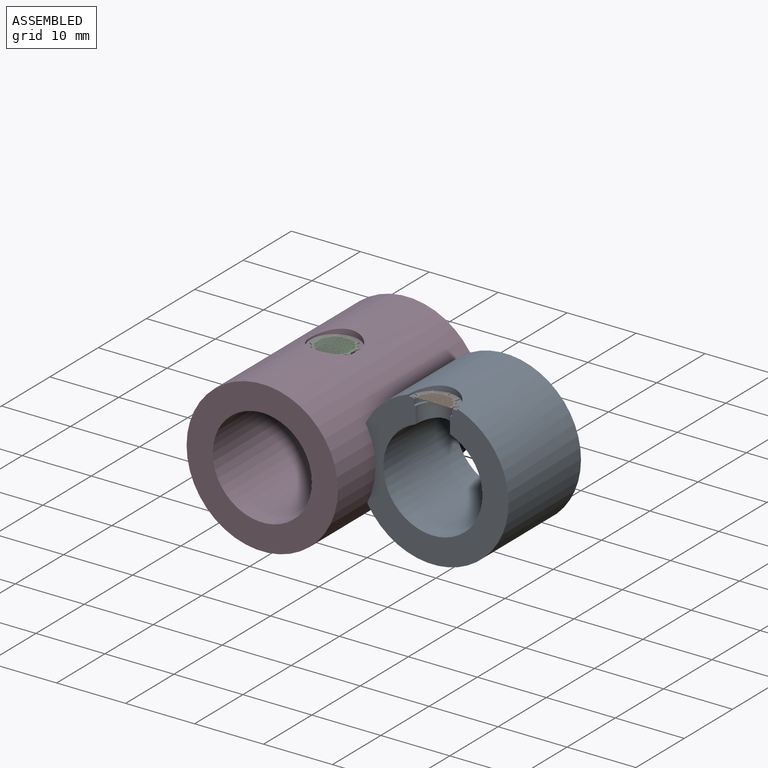
[diagram: assembled view]
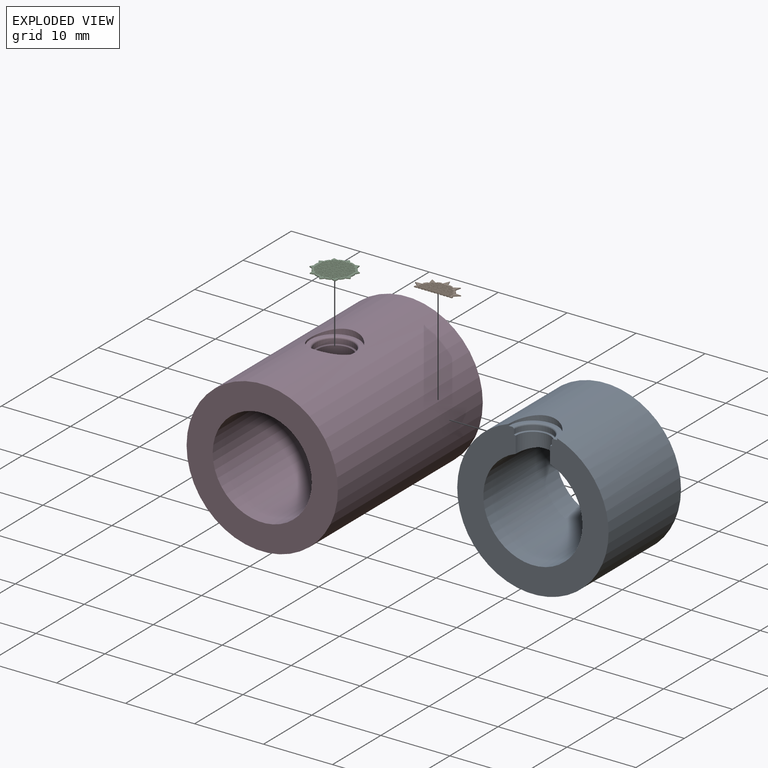
[diagram: exploded view]
GUIDED TOUR — MATED ASSEMBLY (Onshape document 57b4995ae4b0a399ffafbe50, AutoMate assembly 57b4995ae4b0a399ffafbe50_5d55dc523e747e928c4427d9_177f7091939f9d372d16fec1_default)

This assembly has 4 components, labeled P0..P3 below (a component is one placed occurrence of a part; the same part can appear more than once), held together by 2 mates. A mate is a constraint between two components; its type names the relative motion it leaves free:
  FASTENED — locks the two components together rigidly (no relative motion).
Axis/direction vectors are unit vectors and 'through' points are millimeter coordinates, both in the assembly's world frame.

MATES
  1. FASTENED "Fastened 1": P2 <-> P3, direction (0.000, 0.000, -1.000) through (-10.20, -12.13, -7.81) mm
  2. FASTENED "Fastened 4": P1 <-> P0, direction (0.000, 0.000, -1.000) through (9.09, -19.35, -7.33) mm

ASSEMBLY ORDER
  1. P3 — the base component [order verified]
  2. P0 [order verified]
  3. P2 [order verified]
  4. P1 [order verified]
Order-tag legend:
  [order verified] — this step's position reverses a verified removal order: the component was checked to insert without passing through the ones already placed.

Of the 4 components, 2 carry the full construction recipe — the FeatureScript program that regenerates the part's solid from scratch; the rest are supplied as boundary geometry only.
Each toured component is shown spotlighted twice — in the assembled view, then in the exploded view, where a leader line traces a displaced component back to its assembled socket (saturated green if recipe-attached, orange if geometry-only; every other component desaturated gray) — followed by its recipe or geometry summary and the mates that hold it.
NOTE — this tour is split across 2 documents so each fits a 32k-token context. This is document 1: the component sections continue in the remaining 1 document, each repeating the header above.
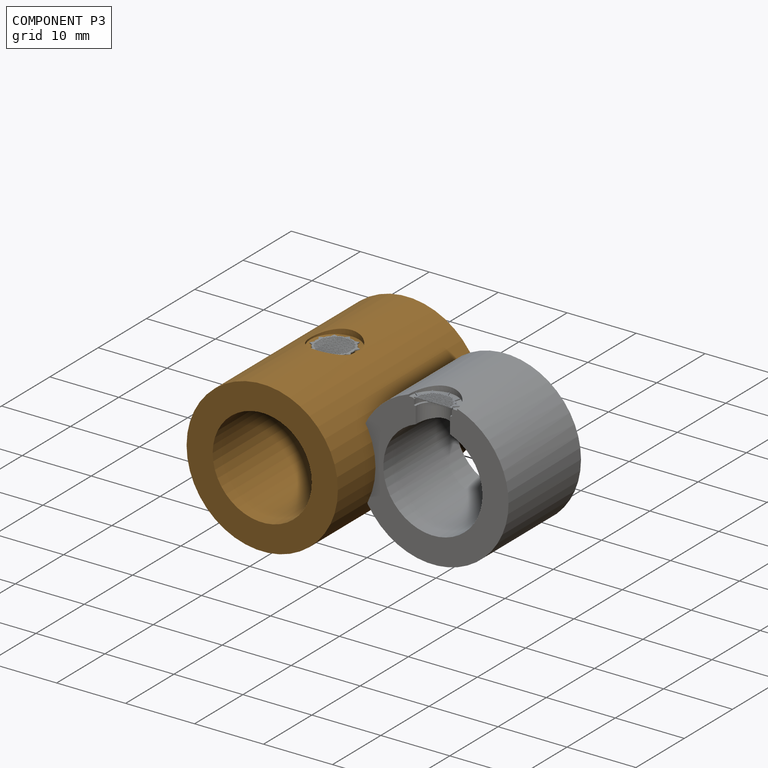
[diagram: component P3 — assembled]
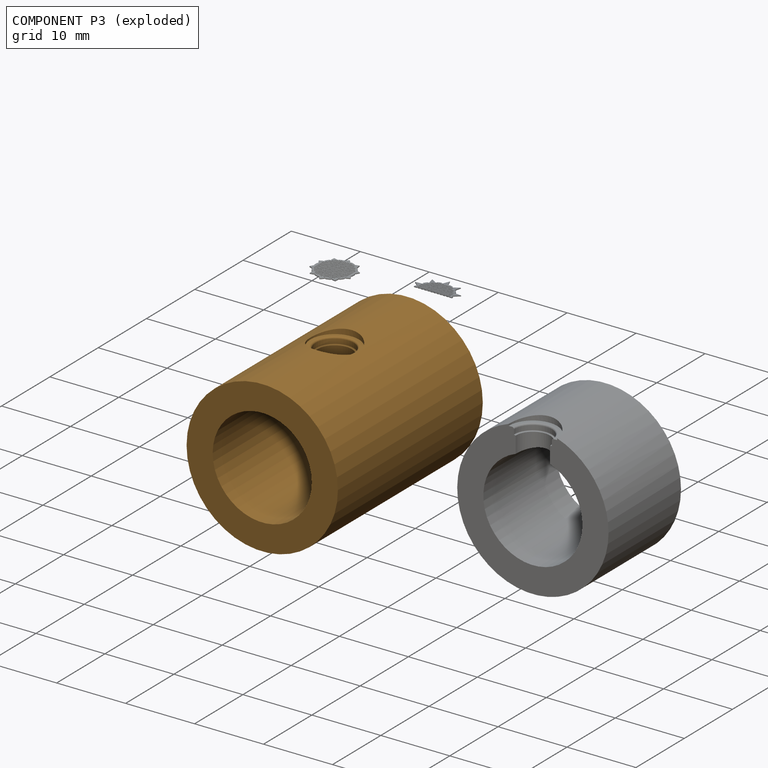
[diagram: component P3 — exploded]
COMPONENT P3 — geometry summary (no construction recipe available for this part):
  bounding box: 30.0 x 21.9 x 21.9 mm
  B-rep topology: 1 solid, 11 faces, 38 edges
  volume: 6386 mm^3 (44% of its bounding box)
  symmetry: 2-fold rotationally symmetric about the z axis; mirror-symmetric across its x mid-plane, y mid-plane
Held by: FASTENED mate "Fastened 1" to P2.
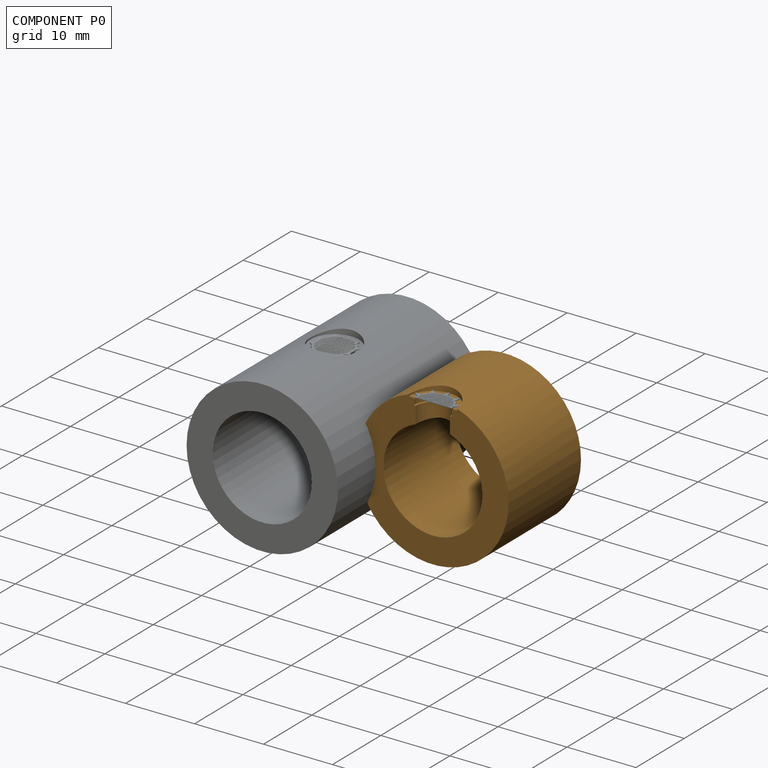
[diagram: component P0 — assembled]
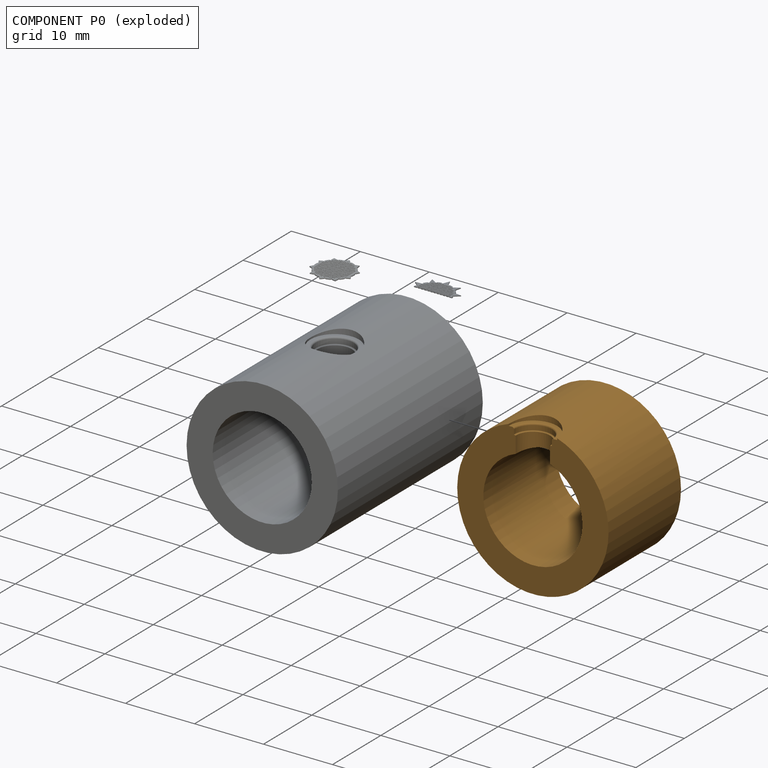
[diagram: component P0 — exploded]
COMPONENT P0 — geometry summary (no construction recipe available for this part):
  bounding box: 21.9 x 21.9 x 15.0 mm
  B-rep topology: 1 solid, 11 faces, 60 edges
  volume: 3193 mm^3 (44% of its bounding box)
  symmetry: mirror-symmetric across its x mid-plane
Held by: FASTENED mate "Fastened 4" to P1.
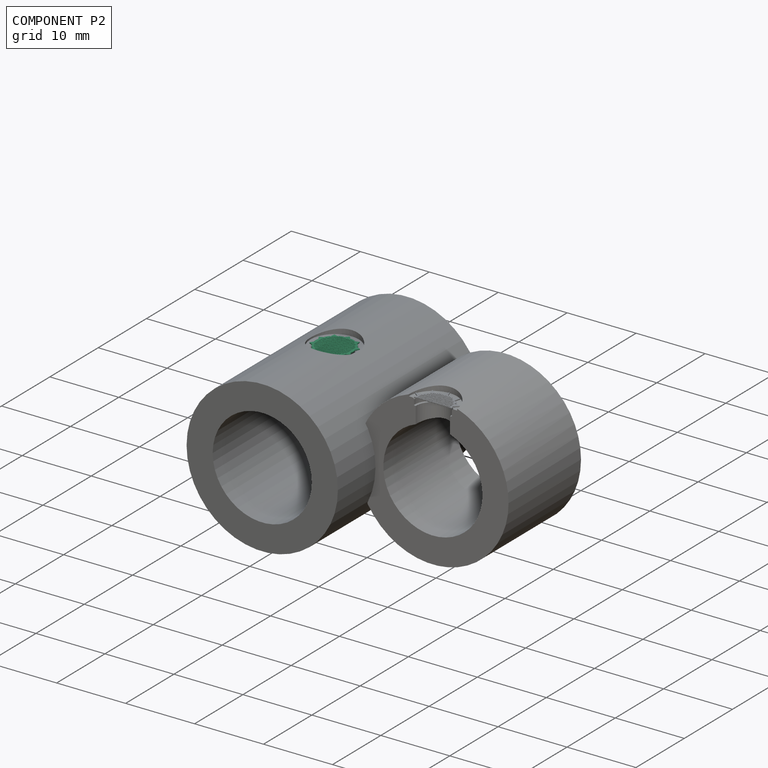
[diagram: component P2 — assembled]
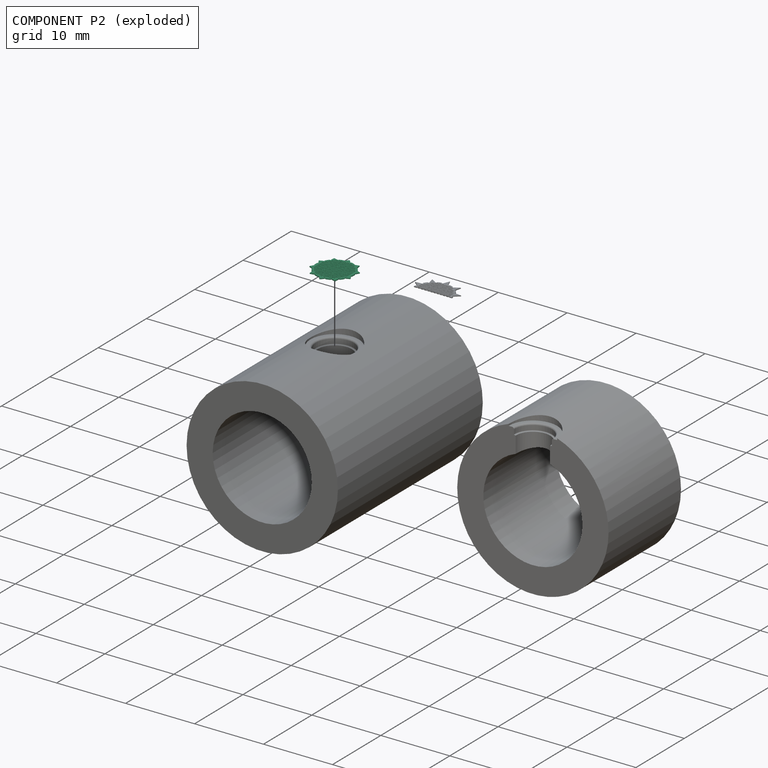
[diagram: component P2 — exploded]
COMPONENT P2 — recipe-attached (CADFS 00219270, mesh-verified: the recipe's output STEP matches this component's geometry to below the mesh-comparison resolution (tessellation chordal tolerance ~0.013 mm)).
Held by: FASTENED mate "Fastened 1" to P3.
Construction recipe (FeatureScript — the CAD program that rebuilds this solid; sketch coordinates are in the units given by the * unit suffixes, e.g. mm):

FeatureScript 1511;
import(path : "onshape/std/geometry.fs", version : "1511.0");
import(path : "onshape/std/common.fs", version : "1511.0");
const mm = millimeter;
const VERTEX = EntityType.VERTEX;
const EDGE = EntityType.EDGE;
const FACE = EntityType.FACE;
const BODY = EntityType.BODY;
function v(x, y){return vector(x, y);}
function OD(order){return orderDisambiguation(order);}
function OSD(set){return originalSetDisambiguation(set);}
function TD(topology){return topologyDisambiguation(topology);}
function TDD(query){return trueDependencyDisambiguation(query);}
function sQuery(a, b, c) {return sketchEntityQuery(a, b, c);}

annotation { "Feature Type Name" : "Feature", "Feature Type Description" : "" }
export const myFeature = defineFeature(function(context is Context, id is Id, definition is map)
    precondition{}
    {
        {
            var Q0;
            Q0=qCreatedBy(makeId("Top.planeOp"),FACE);
            var sketch = newSketch(context, id + "F0", { "sketchPlane" : qUnion([Q0])});
            skCircle(sketch, "E0", {"center": v(0, 0) * mm, "radius": 2.5 * mm});
            skArc(sketch, "E1", {"start": v(0.37, 2.72) * mm, "mid": v(0, 2.75) * mm, "end": v(-0.37, 2.72) * mm});
            skPoint(sketch, "E2", {"position": v(0, 2.75) * mm});
            skLineSegment(sketch, "E3", {"start": v(-3.94, 3.13) * mm, "end": v(3.7, 3.13) * mm, "construction": true});
            skLineSegment(sketch, "E4", {"start": v(0, 3.13) * mm, "end": v(-0.37, 2.72) * mm});
            skLineSegment(sketch, "E5", {"start": v(0, 3.13) * mm, "end": v(0.37, 2.72) * mm});
            skLineSegment(sketch, "E6.1.0", {"start": v(-1.84, 2.53) * mm, "end": v(-1.9, 1.99) * mm});
            skLineSegment(sketch, "E6.1.1", {"start": v(-1.84, 2.53) * mm, "end": v(-1.3, 2.42) * mm});
            skLineSegment(sketch, "E6.2.0", {"start": v(-2.98, 0.97) * mm, "end": v(-2.7, 0.49) * mm});
            skLineSegment(sketch, "E6.2.1", {"start": v(-2.98, 0.97) * mm, "end": v(-2.48, 1.2) * mm});
            skLineSegment(sketch, "E6.3.0", {"start": v(-2.98, -0.97) * mm, "end": v(-2.48, -1.2) * mm});
            skLineSegment(sketch, "E6.3.1", {"start": v(-2.98, -0.97) * mm, "end": v(-2.7, -0.49) * mm});
            skLineSegment(sketch, "E6.4.0", {"start": v(-1.84, -2.53) * mm, "end": v(-1.3, -2.42) * mm});
            skLineSegment(sketch, "E6.4.1", {"start": v(-1.84, -2.53) * mm, "end": v(-1.9, -1.99) * mm});
            skLineSegment(sketch, "E6.5.0", {"start": v(0, -3.13) * mm, "end": v(0.37, -2.72) * mm});
            skLineSegment(sketch, "E6.5.1", {"start": v(0, -3.13) * mm, "end": v(-0.37, -2.72) * mm});
            skLineSegment(sketch, "E6.6.0", {"start": v(1.84, -2.53) * mm, "end": v(1.9, -1.99) * mm});
            skLineSegment(sketch, "E6.6.1", {"start": v(1.84, -2.53) * mm, "end": v(1.3, -2.42) * mm});
            skLineSegment(sketch, "E6.7.0", {"start": v(2.98, -0.97) * mm, "end": v(2.7, -0.49) * mm});
            skLineSegment(sketch, "E6.7.1", {"start": v(2.98, -0.97) * mm, "end": v(2.48, -1.2) * mm});
            skLineSegment(sketch, "E6.8.0", {"start": v(2.98, 0.97) * mm, "end": v(2.48, 1.2) * mm});
            skLineSegment(sketch, "E6.8.1", {"start": v(2.98, 0.97) * mm, "end": v(2.7, 0.49) * mm});
            skLineSegment(sketch, "E6.9.0", {"start": v(1.84, 2.53) * mm, "end": v(1.3, 2.42) * mm});
            skLineSegment(sketch, "E6.9.1", {"start": v(1.84, 2.53) * mm, "end": v(1.9, 1.99) * mm});
            skCircle(sketch, "E7", {"center": v(0, 0) * mm, "radius": 2.62 * mm});
            skPoint(sketch, "E8", {"position": v(0.46, 2.71) * mm});
            skArc(sketch, "E9", {"start": v(0.37, 2.72) * mm, "mid": v(0.44, 2.63) * mm, "end": v(0.54, 2.7) * mm});
            skArc(sketch, "E10.1.0", {"start": v(-1.3, 2.42) * mm, "mid": v(-1.18, 2.38) * mm, "end": v(-1.14, 2.5) * mm});
            skArc(sketch, "E10.2.0", {"start": v(-2.48, 1.2) * mm, "mid": v(-2.36, 1.23) * mm, "end": v(-2.4, 1.35) * mm});
            skArc(sketch, "E10.3.0", {"start": v(-2.7, -0.49) * mm, "mid": v(-2.63, -0.4) * mm, "end": v(-2.73, -0.32) * mm});
            skArc(sketch, "E10.4.0", {"start": v(-1.9, -1.99) * mm, "mid": v(-1.9, -1.86) * mm, "end": v(-2.02, -1.86) * mm});
            skArc(sketch, "E10.5.0", {"start": v(-0.37, -2.72) * mm, "mid": v(-0.44, -2.63) * mm, "end": v(-0.54, -2.7) * mm});
            skArc(sketch, "E10.6.0", {"start": v(1.3, -2.42) * mm, "mid": v(1.18, -2.38) * mm, "end": v(1.14, -2.5) * mm});
            skArc(sketch, "E10.7.0", {"start": v(2.48, -1.2) * mm, "mid": v(2.36, -1.23) * mm, "end": v(2.4, -1.35) * mm});
            skArc(sketch, "E10.8.0", {"start": v(2.7, 0.49) * mm, "mid": v(2.63, 0.4) * mm, "end": v(2.73, 0.32) * mm});
            skArc(sketch, "E10.9.0", {"start": v(1.9, 1.99) * mm, "mid": v(1.9, 1.86) * mm, "end": v(2.02, 1.86) * mm});
            skArc(sketch, "E11", {"start": v(-0.54, 2.7) * mm, "mid": v(-0.44, 2.63) * mm, "end": v(-0.37, 2.72) * mm});
            skArc(sketch, "E12.trimOffspring", {"start": v(-0.54, 2.7) * mm, "mid": v(-0.85, 2.62) * mm, "end": v(-1.14, 2.5) * mm});
            skArc(sketch, "E13.1.0", {"start": v(-2.02, 1.86) * mm, "mid": v(-1.9, 1.86) * mm, "end": v(-1.9, 1.99) * mm});
            skArc(sketch, "E13.2.0", {"start": v(-2.73, 0.32) * mm, "mid": v(-2.63, 0.4) * mm, "end": v(-2.7, 0.49) * mm});
            skArc(sketch, "E13.3.0", {"start": v(-2.4, -1.35) * mm, "mid": v(-2.36, -1.23) * mm, "end": v(-2.48, -1.2) * mm});
            skArc(sketch, "E13.4.0", {"start": v(-1.14, -2.5) * mm, "mid": v(-1.18, -2.38) * mm, "end": v(-1.3, -2.42) * mm});
            skArc(sketch, "E13.5.0", {"start": v(0.54, -2.7) * mm, "mid": v(0.44, -2.63) * mm, "end": v(0.37, -2.72) * mm});
            skArc(sketch, "E13.6.0", {"start": v(2.02, -1.86) * mm, "mid": v(1.9, -1.86) * mm, "end": v(1.9, -1.99) * mm});
            skArc(sketch, "E13.7.0", {"start": v(2.73, -0.32) * mm, "mid": v(2.63, -0.4) * mm, "end": v(2.7, -0.49) * mm});
            skArc(sketch, "E13.8.0", {"start": v(2.4, 1.35) * mm, "mid": v(2.36, 1.23) * mm, "end": v(2.48, 1.2) * mm});
            skArc(sketch, "E13.9.0", {"start": v(1.14, 2.5) * mm, "mid": v(1.18, 2.38) * mm, "end": v(1.3, 2.42) * mm});
            skArc(sketch, "E14.trimOffspring", {"start": v(1.14, 2.5) * mm, "mid": v(0.85, 2.62) * mm, "end": v(0.54, 2.7) * mm});
            skArc(sketch, "E15.trimOffspring", {"start": v(1.9, 1.99) * mm, "mid": v(1.62, 2.22) * mm, "end": v(1.3, 2.42) * mm});
            skArc(sketch, "E16.trimOffspring", {"start": v(2.4, 1.35) * mm, "mid": v(2.22, 1.62) * mm, "end": v(2.02, 1.86) * mm});
            skArc(sketch, "E17.trimOffspring", {"start": v(2.7, 0.49) * mm, "mid": v(2.62, 0.85) * mm, "end": v(2.48, 1.2) * mm});
            skArc(sketch, "E18.trimOffspring", {"start": v(2.73, -0.32) * mm, "mid": v(2.75, 0) * mm, "end": v(2.73, 0.32) * mm});
            skArc(sketch, "E19.trimOffspring", {"start": v(2.48, -1.2) * mm, "mid": v(2.62, -0.85) * mm, "end": v(2.7, -0.49) * mm});
            skArc(sketch, "E20.trimOffspring", {"start": v(2.02, -1.86) * mm, "mid": v(2.22, -1.62) * mm, "end": v(2.4, -1.35) * mm});
            skArc(sketch, "E21.trimOffspring", {"start": v(1.3, -2.42) * mm, "mid": v(1.62, -2.22) * mm, "end": v(1.9, -1.99) * mm});
            skArc(sketch, "E22.trimOffspring", {"start": v(-2.4, -1.35) * mm, "mid": v(-2.22, -1.62) * mm, "end": v(-2.02, -1.86) * mm});
            skArc(sketch, "E23.trimOffspring", {"start": v(-1.9, -1.99) * mm, "mid": v(-1.62, -2.22) * mm, "end": v(-1.3, -2.42) * mm});
            skArc(sketch, "E24.trimOffspring", {"start": v(-1.14, -2.5) * mm, "mid": v(-0.85, -2.62) * mm, "end": v(-0.54, -2.7) * mm});
            skArc(sketch, "E25.trimOffspring", {"start": v(-0.37, -2.72) * mm, "mid": v(0, -2.75) * mm, "end": v(0.37, -2.72) * mm});
            skArc(sketch, "E26.trimOffspring", {"start": v(0.54, -2.7) * mm, "mid": v(0.85, -2.62) * mm, "end": v(1.14, -2.5) * mm});
            skArc(sketch, "E27.trimOffspring", {"start": v(-2.7, -0.49) * mm, "mid": v(-2.62, -0.85) * mm, "end": v(-2.48, -1.2) * mm});
            skArc(sketch, "E28.trimOffspring", {"start": v(-2.73, 0.32) * mm, "mid": v(-2.75, 0) * mm, "end": v(-2.73, -0.32) * mm});
            skArc(sketch, "E29.trimOffspring", {"start": v(-2.48, 1.2) * mm, "mid": v(-2.62, 0.85) * mm, "end": v(-2.7, 0.49) * mm});
            skArc(sketch, "E30.trimOffspring", {"start": v(-2.02, 1.86) * mm, "mid": v(-2.22, 1.62) * mm, "end": v(-2.4, 1.35) * mm});
            skArc(sketch, "E31.trimOffspring", {"start": v(-1.3, 2.42) * mm, "mid": v(-1.62, 2.22) * mm, "end": v(-1.9, 1.99) * mm});
            skSolve(sketch);
        }
        {
            var Q0;
            Q0 = qSketchRegion(id + "F0", true);
            var Q1;
            Q1=makeQuery(id+"F0.imprint","IMPRINT",FACE,{"disambiguationData":[TD([[makeQuery(id+"F0.imprint","IMPRINT",EDGE,{"derivedFrom":sQuery(id+"F0.wireOp",EDGE,"E0")}),1.0]])]});
            var Q2;
            Q2=makeQuery(id+"F0.imprint","IMPRINT",FACE,{"disambiguationData":[TD([[makeQuery(id+"F0.imprint","IMPRINT",EDGE,{"derivedFrom":sQuery(id+"F0.wireOp",EDGE,"E0")}),-1.0]])]});
            extrude(context, id + "F1", {"entities" : qUnion([Q0, Q1, Q2]), "depth" : 0.13 * mm});
        }
        {
            var Q0;
            Q0=makeQuery(id+"F1.opExtrude","CAP_FACE",FACE,{"disambiguationData":[OSD([sQuery(id+"F0.wireOp",EDGE,"E1"),sQuery(id+"F0.wireOp",EDGE,"E4"),sQuery(id+"F0.wireOp",EDGE,"E5"),sQuery(id+"F0.wireOp",EDGE,"E6.1.0"),sQuery(id+"F0.wireOp",EDGE,"E6.1.1"),sQuery(id+"F0.wireOp",EDGE,"E6.2.0"),sQuery(id+"F0.wireOp",EDGE,"E6.2.1"),sQuery(id+"F0.wireOp",EDGE,"E6.3.0"),sQuery(id+"F0.wireOp",EDGE,"E6.3.1"),sQuery(id+"F0.wireOp",EDGE,"E6.4.0"),sQuery(id+"F0.wireOp",EDGE,"E6.4.1"),sQuery(id+"F0.wireOp",EDGE,"E6.5.0"),sQuery(id+"F0.wireOp",EDGE,"E6.5.1"),sQuery(id+"F0.wireOp",EDGE,"E6.6.0"),sQuery(id+"F0.wireOp",EDGE,"E6.6.1"),sQuery(id+"F0.wireOp",EDGE,"E6.7.0"),sQuery(id+"F0.wireOp",EDGE,"E6.7.1"),sQuery(id+"F0.wireOp",EDGE,"E6.8.0"),sQuery(id+"F0.wireOp",EDGE,"E6.8.1"),sQuery(id+"F0.wireOp",EDGE,"E6.9.0"),sQuery(id+"F0.wireOp",EDGE,"E6.9.1")])],"isStart":false});
            cPlane(context, id + "F2", {"entities" : qUnion([Q0]), "cplaneType" : CPlaneType.OFFSET, "offset" : 0 * mm, "width" : 150 * mm, "height" : 150 * mm});
        }
        {
            var Q0;
            Q0=qCreatedBy(id+"F2.planeOp",FACE);
            var sketch = newSketch(context, id + "F3", { "sketchPlane" : qUnion([Q0])});
            skCircle(sketch, "E32.2.1.8", {"center": v(-2.04, 1.23) * mm, "radius": 0.09 * mm});
            skCircle(sketch, "E32.2.1.9", {"center": v(-2.04, 1) * mm, "radius": 0.09 * mm});
            skCircle(sketch, "E32.0.1.10", {"center": v(-2.27, 0.91) * mm, "radius": 0.09 * mm});
            skCircle(sketch, "E32.2.1.10", {"center": v(-2.04, 0.78) * mm, "radius": 0.09 * mm});
            skCircle(sketch, "E32.2.2.5", {"center": v(-1.59, 1.91) * mm, "radius": 0.09 * mm});
            skCircle(sketch, "E32.2.2.6", {"center": v(-1.59, 1.69) * mm, "radius": 0.09 * mm});
            skCircle(sketch, "E32.0.2.7", {"center": v(-1.82, 1.6) * mm, "radius": 0.09 * mm});
            skCircle(sketch, "E32.2.2.7", {"center": v(-1.59, 1.46) * mm, "radius": 0.09 * mm});
            skCircle(sketch, "E32.0.2.8", {"center": v(-1.82, 1.36) * mm, "radius": 0.09 * mm});
            skCircle(sketch, "E32.2.2.8", {"center": v(-1.59, 1.23) * mm, "radius": 0.09 * mm});
            skCircle(sketch, "E32.0.2.9", {"center": v(-1.82, 1.14) * mm, "radius": 0.09 * mm});
            skCircle(sketch, "E32.2.2.9", {"center": v(-1.59, 1) * mm, "radius": 0.09 * mm});
            skCircle(sketch, "E32.0.2.10", {"center": v(-1.82, 0.91) * mm, "radius": 0.09 * mm});
            skCircle(sketch, "E32.2.2.10", {"center": v(-1.59, 0.78) * mm, "radius": 0.09 * mm});
            skCircle(sketch, "E32.2.3.4", {"center": v(-1.13, 2.14) * mm, "radius": 0.09 * mm});
            skCircle(sketch, "E32.0.3.5", {"center": v(-1.36, 2.05) * mm, "radius": 0.09 * mm});
            skCircle(sketch, "E32.2.3.5", {"center": v(-1.13, 1.91) * mm, "radius": 0.09 * mm});
            skCircle(sketch, "E32.0.3.6", {"center": v(-1.36, 1.82) * mm, "radius": 0.09 * mm});
            skCircle(sketch, "E32.2.3.6", {"center": v(-1.13, 1.69) * mm, "radius": 0.09 * mm});
            skCircle(sketch, "E32.0.3.7", {"center": v(-1.36, 1.6) * mm, "radius": 0.09 * mm});
            skCircle(sketch, "E32.2.3.7", {"center": v(-1.13, 1.46) * mm, "radius": 0.09 * mm});
            skCircle(sketch, "E32.0.3.8", {"center": v(-1.36, 1.36) * mm, "radius": 0.09 * mm});
            skCircle(sketch, "E32.2.3.8", {"center": v(-1.13, 1.23) * mm, "radius": 0.09 * mm});
            skCircle(sketch, "E32.0.3.9", {"center": v(-1.36, 1.14) * mm, "radius": 0.09 * mm});
            skCircle(sketch, "E32.2.3.9", {"center": v(-1.13, 1) * mm, "radius": 0.09 * mm});
            skCircle(sketch, "E32.0.3.10", {"center": v(-1.36, 0.91) * mm, "radius": 0.09 * mm});
            skCircle(sketch, "E32.2.3.10", {"center": v(-1.13, 0.78) * mm, "radius": 0.09 * mm});
            skCircle(sketch, "E32.2.4.3", {"center": v(-0.68, 2.37) * mm, "radius": 0.09 * mm});
            skCircle(sketch, "E32.0.4.4", {"center": v(-0.9, 2.27) * mm, "radius": 0.09 * mm});
            skCircle(sketch, "E32.2.4.4", {"center": v(-0.68, 2.14) * mm, "radius": 0.09 * mm});
            skCircle(sketch, "E32.0.4.5", {"center": v(-0.9, 2.05) * mm, "radius": 0.09 * mm});
            skCircle(sketch, "E32.2.4.5", {"center": v(-0.68, 1.91) * mm, "radius": 0.09 * mm});
            skCircle(sketch, "E32.0.4.6", {"center": v(-0.9, 1.82) * mm, "radius": 0.09 * mm});
            skCircle(sketch, "E32.2.4.6", {"center": v(-0.68, 1.69) * mm, "radius": 0.09 * mm});
            skCircle(sketch, "E32.0.4.7", {"center": v(-0.9, 1.6) * mm, "radius": 0.09 * mm});
            skCircle(sketch, "E32.2.4.7", {"center": v(-0.68, 1.46) * mm, "radius": 0.09 * mm});
            skCircle(sketch, "E32.0.4.8", {"center": v(-0.9, 1.36) * mm, "radius": 0.09 * mm});
            skCircle(sketch, "E32.2.4.8", {"center": v(-0.68, 1.23) * mm, "radius": 0.09 * mm});
            skCircle(sketch, "E32.0.4.9", {"center": v(-0.9, 1.14) * mm, "radius": 0.09 * mm});
            skCircle(sketch, "E32.2.4.9", {"center": v(-0.68, 1) * mm, "radius": 0.09 * mm});
            skCircle(sketch, "E32.0.4.10", {"center": v(-0.9, 0.91) * mm, "radius": 0.09 * mm});
            skCircle(sketch, "E32.2.4.10", {"center": v(-0.68, 0.78) * mm, "radius": 0.09 * mm});
            skCircle(sketch, "E32.2.5.3", {"center": v(-0.23, 2.37) * mm, "radius": 0.09 * mm});
            skCircle(sketch, "E32.0.5.4", {"center": v(-0.45, 2.27) * mm, "radius": 0.09 * mm});
            skCircle(sketch, "E32.2.5.4", {"center": v(-0.23, 2.14) * mm, "radius": 0.09 * mm});
            skCircle(sketch, "E32.0.5.5", {"center": v(-0.45, 2.05) * mm, "radius": 0.09 * mm});
            skCircle(sketch, "E32.2.5.5", {"center": v(-0.23, 1.91) * mm, "radius": 0.09 * mm});
            skCircle(sketch, "E32.0.5.6", {"center": v(-0.45, 1.82) * mm, "radius": 0.09 * mm});
            skCircle(sketch, "E32.2.5.6", {"center": v(-0.23, 1.69) * mm, "radius": 0.09 * mm});
            skCircle(sketch, "E32.0.5.7", {"center": v(-0.45, 1.6) * mm, "radius": 0.09 * mm});
            skCircle(sketch, "E32.2.5.7", {"center": v(-0.23, 1.46) * mm, "radius": 0.09 * mm});
            skCircle(sketch, "E32.0.5.8", {"center": v(-0.45, 1.36) * mm, "radius": 0.09 * mm});
            skCircle(sketch, "E32.2.5.8", {"center": v(-0.23, 1.23) * mm, "radius": 0.09 * mm});
            skCircle(sketch, "E32.0.5.9", {"center": v(-0.45, 1.14) * mm, "radius": 0.09 * mm});
            skCircle(sketch, "E32.2.5.9", {"center": v(-0.23, 1) * mm, "radius": 0.09 * mm});
            skCircle(sketch, "E32.0.5.10", {"center": v(-0.45, 0.91) * mm, "radius": 0.09 * mm});
            skCircle(sketch, "E32.2.5.10", {"center": v(-0.23, 0.78) * mm, "radius": 0.09 * mm});
            skCircle(sketch, "E32.2.6.3", {"center": v(0.23, 2.37) * mm, "radius": 0.09 * mm});
            skCircle(sketch, "E32.0.6.4", {"center": v(0, 2.27) * mm, "radius": 0.09 * mm});
            skCircle(sketch, "E32.2.6.4", {"center": v(0.23, 2.14) * mm, "radius": 0.09 * mm});
            skCircle(sketch, "E32.0.6.5", {"center": v(0, 2.05) * mm, "radius": 0.09 * mm});
            skCircle(sketch, "E32.2.6.5", {"center": v(0.23, 1.91) * mm, "radius": 0.09 * mm});
            skCircle(sketch, "E32.0.6.6", {"center": v(0, 1.82) * mm, "radius": 0.09 * mm});
            skCircle(sketch, "E32.2.6.6", {"center": v(0.23, 1.69) * mm, "radius": 0.09 * mm});
            skCircle(sketch, "E32.0.6.7", {"center": v(0, 1.6) * mm, "radius": 0.09 * mm});
            skCircle(sketch, "E32.2.6.7", {"center": v(0.23, 1.46) * mm, "radius": 0.09 * mm});
            skCircle(sketch, "E32.0.6.8", {"center": v(0, 1.36) * mm, "radius": 0.09 * mm});
            skCircle(sketch, "E32.2.6.8", {"center": v(0.23, 1.23) * mm, "radius": 0.09 * mm});
            skCircle(sketch, "E32.0.6.9", {"center": v(0, 1.14) * mm, "radius": 0.09 * mm});
            skCircle(sketch, "E32.2.6.9", {"center": v(0.23, 1) * mm, "radius": 0.09 * mm});
            skCircle(sketch, "E32.0.6.10", {"center": v(0, 0.91) * mm, "radius": 0.09 * mm});
            skCircle(sketch, "E32.2.6.10", {"center": v(0.23, 0.78) * mm, "radius": 0.09 * mm});
            skCircle(sketch, "E32.2.7.3", {"center": v(0.68, 2.37) * mm, "radius": 0.09 * mm});
            skCircle(sketch, "E32.0.7.4", {"center": v(0.45, 2.27) * mm, "radius": 0.09 * mm});
            skCircle(sketch, "E32.2.7.4", {"center": v(0.68, 2.14) * mm, "radius": 0.09 * mm});
            skCircle(sketch, "E32.0.7.5", {"center": v(0.45, 2.05) * mm, "radius": 0.09 * mm});
            skCircle(sketch, "E32.2.7.5", {"center": v(0.68, 1.91) * mm, "radius": 0.09 * mm});
            skCircle(sketch, "E32.0.7.6", {"center": v(0.45, 1.82) * mm, "radius": 0.09 * mm});
            skCircle(sketch, "E32.2.7.6", {"center": v(0.68, 1.69) * mm, "radius": 0.09 * mm});
            skCircle(sketch, "E32.0.7.7", {"center": v(0.45, 1.6) * mm, "radius": 0.09 * mm});
            skCircle(sketch, "E32.2.7.7", {"center": v(0.68, 1.46) * mm, "radius": 0.09 * mm});
            skCircle(sketch, "E32.0.7.8", {"center": v(0.45, 1.36) * mm, "radius": 0.09 * mm});
            skCircle(sketch, "E32.2.7.8", {"center": v(0.68, 1.23) * mm, "radius": 0.09 * mm});
            skCircle(sketch, "E32.0.7.9", {"center": v(0.45, 1.14) * mm, "radius": 0.09 * mm});
            skCircle(sketch, "E32.2.7.9", {"center": v(0.68, 1) * mm, "radius": 0.09 * mm});
            skCircle(sketch, "E32.0.7.10", {"center": v(0.45, 0.91) * mm, "radius": 0.09 * mm});
            skCircle(sketch, "E32.2.7.10", {"center": v(0.68, 0.78) * mm, "radius": 0.09 * mm});
            skCircle(sketch, "E32.0.8.4", {"center": v(0.9, 2.27) * mm, "radius": 0.09 * mm});
            skCircle(sketch, "E32.2.8.4", {"center": v(1.14, 2.14) * mm, "radius": 0.09 * mm});
            skCircle(sketch, "E32.0.8.5", {"center": v(0.9, 2.05) * mm, "radius": 0.09 * mm});
            skCircle(sketch, "E32.2.8.5", {"center": v(1.14, 1.91) * mm, "radius": 0.09 * mm});
            skCircle(sketch, "E32.0.8.6", {"center": v(0.9, 1.82) * mm, "radius": 0.09 * mm});
            skCircle(sketch, "E32.2.8.6", {"center": v(1.14, 1.69) * mm, "radius": 0.09 * mm});
            skCircle(sketch, "E32.0.8.7", {"center": v(0.9, 1.6) * mm, "radius": 0.09 * mm});
            skCircle(sketch, "E32.2.8.7", {"center": v(1.14, 1.46) * mm, "radius": 0.09 * mm});
            skCircle(sketch, "E32.0.8.8", {"center": v(0.9, 1.36) * mm, "radius": 0.09 * mm});
            skCircle(sketch, "E32.2.8.8", {"center": v(1.14, 1.23) * mm, "radius": 0.09 * mm});
            skCircle(sketch, "E32.0.8.9", {"center": v(0.9, 1.14) * mm, "radius": 0.09 * mm});
            skCircle(sketch, "E32.2.8.9", {"center": v(1.14, 1) * mm, "radius": 0.09 * mm});
            skCircle(sketch, "E32.0.8.10", {"center": v(0.9, 0.91) * mm, "radius": 0.09 * mm});
            skCircle(sketch, "E32.2.8.10", {"center": v(1.14, 0.78) * mm, "radius": 0.09 * mm});
            skCircle(sketch, "E32.0.9.5", {"center": v(1.36, 2.05) * mm, "radius": 0.09 * mm});
            skCircle(sketch, "E32.0.9.6", {"center": v(1.36, 1.82) * mm, "radius": 0.09 * mm});
            skCircle(sketch, "E32.2.9.6", {"center": v(1.6, 1.69) * mm, "radius": 0.09 * mm});
            skCircle(sketch, "E32.0.9.7", {"center": v(1.36, 1.6) * mm, "radius": 0.09 * mm});
            skCircle(sketch, "E32.2.9.7", {"center": v(1.6, 1.46) * mm, "radius": 0.09 * mm});
            skCircle(sketch, "E32.0.9.8", {"center": v(1.36, 1.36) * mm, "radius": 0.09 * mm});
            skCircle(sketch, "E32.2.9.8", {"center": v(1.6, 1.23) * mm, "radius": 0.09 * mm});
            skCircle(sketch, "E32.0.9.9", {"center": v(1.36, 1.14) * mm, "radius": 0.09 * mm});
            skCircle(sketch, "E32.2.9.9", {"center": v(1.6, 1) * mm, "radius": 0.09 * mm});
            skCircle(sketch, "E32.0.9.10", {"center": v(1.36, 0.91) * mm, "radius": 0.09 * mm});
            skCircle(sketch, "E32.2.9.10", {"center": v(1.6, 0.78) * mm, "radius": 0.09 * mm});
            skCircle(sketch, "E32.0.10.7", {"center": v(1.82, 1.6) * mm, "radius": 0.09 * mm});
            skCircle(sketch, "E32.0.10.8", {"center": v(1.82, 1.36) * mm, "radius": 0.09 * mm});
            skCircle(sketch, "E32.2.10.8", {"center": v(2.04, 1.23) * mm, "radius": 0.09 * mm});
            skCircle(sketch, "E32.0.10.9", {"center": v(1.82, 1.14) * mm, "radius": 0.09 * mm});
            skCircle(sketch, "E32.2.10.9", {"center": v(2.04, 1) * mm, "radius": 0.09 * mm});
            skCircle(sketch, "E32.0.10.10", {"center": v(1.82, 0.91) * mm, "radius": 0.09 * mm});
            skCircle(sketch, "E32.2.10.10", {"center": v(2.04, 0.78) * mm, "radius": 0.09 * mm});
            skCircle(sketch, "E33.0.1.11", {"center": v(-2.27, 0.68) * mm, "radius": 0.09 * mm});
            skCircle(sketch, "E33.2.1.11", {"center": v(-2.04, 0.55) * mm, "radius": 0.09 * mm});
            skCircle(sketch, "E33.0.1.12", {"center": v(-2.27, 0.46) * mm, "radius": 0.09 * mm});
            skCircle(sketch, "E33.2.1.12", {"center": v(-2.04, 0.33) * mm, "radius": 0.09 * mm});
            skCircle(sketch, "E33.0.1.13", {"center": v(-2.27, 0.23) * mm, "radius": 0.09 * mm});
            skCircle(sketch, "E33.2.1.13", {"center": v(-2.04, 0.1) * mm, "radius": 0.09 * mm});
            skCircle(sketch, "E33.0.1.14", {"center": v(-2.27, 0) * mm, "radius": 0.09 * mm});
            skCircle(sketch, "E33.2.1.14", {"center": v(-2.04, -0.13) * mm, "radius": 0.09 * mm});
            skCircle(sketch, "E33.0.1.15", {"center": v(-2.27, -0.22) * mm, "radius": 0.09 * mm});
            skCircle(sketch, "E33.2.1.15", {"center": v(-2.04, -0.36) * mm, "radius": 0.09 * mm});
            skCircle(sketch, "E33.0.1.16", {"center": v(-2.27, -0.45) * mm, "radius": 0.09 * mm});
            skCircle(sketch, "E33.2.1.16", {"center": v(-2.04, -0.58) * mm, "radius": 0.09 * mm});
            skCircle(sketch, "E33.0.1.17", {"center": v(-2.27, -0.68) * mm, "radius": 0.09 * mm});
            skCircle(sketch, "E33.2.1.17", {"center": v(-2.04, -0.8) * mm, "radius": 0.09 * mm});
            skCircle(sketch, "E33.0.1.18", {"center": v(-2.27, -0.9) * mm, "radius": 0.09 * mm});
            skCircle(sketch, "E33.2.1.18", {"center": v(-2.04, -1.04) * mm, "radius": 0.09 * mm});
            skCircle(sketch, "E33.2.1.19", {"center": v(-2.04, -1.26) * mm, "radius": 0.09 * mm});
            skCircle(sketch, "E33.0.2.11", {"center": v(-1.82, 0.68) * mm, "radius": 0.09 * mm});
            skCircle(sketch, "E33.2.2.11", {"center": v(-1.59, 0.55) * mm, "radius": 0.09 * mm});
            skCircle(sketch, "E33.0.2.12", {"center": v(-1.82, 0.46) * mm, "radius": 0.09 * mm});
            skCircle(sketch, "E33.2.2.12", {"center": v(-1.59, 0.33) * mm, "radius": 0.09 * mm});
            skCircle(sketch, "E33.0.2.13", {"center": v(-1.82, 0.23) * mm, "radius": 0.09 * mm});
            skCircle(sketch, "E33.2.2.13", {"center": v(-1.59, 0.1) * mm, "radius": 0.09 * mm});
            skCircle(sketch, "E33.0.2.14", {"center": v(-1.82, 0) * mm, "radius": 0.09 * mm});
            skCircle(sketch, "E33.2.2.14", {"center": v(-1.59, -0.13) * mm, "radius": 0.09 * mm});
            skCircle(sketch, "E33.0.2.15", {"center": v(-1.82, -0.22) * mm, "radius": 0.09 * mm});
            skCircle(sketch, "E33.2.2.15", {"center": v(-1.59, -0.36) * mm, "radius": 0.09 * mm});
            skCircle(sketch, "E33.0.2.16", {"center": v(-1.82, -0.45) * mm, "radius": 0.09 * mm});
            skCircle(sketch, "E33.2.2.16", {"center": v(-1.59, -0.58) * mm, "radius": 0.09 * mm});
            skCircle(sketch, "E33.0.2.17", {"center": v(-1.82, -0.68) * mm, "radius": 0.09 * mm});
            skCircle(sketch, "E33.2.2.17", {"center": v(-1.59, -0.8) * mm, "radius": 0.09 * mm});
            skCircle(sketch, "E33.0.2.18", {"center": v(-1.82, -0.9) * mm, "radius": 0.09 * mm});
            skCircle(sketch, "E33.2.2.18", {"center": v(-1.59, -1.04) * mm, "radius": 0.09 * mm});
            skCircle(sketch, "E33.0.2.19", {"center": v(-1.82, -1.13) * mm, "radius": 0.09 * mm});
            skCircle(sketch, "E33.2.2.19", {"center": v(-1.59, -1.26) * mm, "radius": 0.09 * mm});
            skCircle(sketch, "E33.0.2.20", {"center": v(-1.82, -1.36) * mm, "radius": 0.09 * mm});
            skCircle(sketch, "E33.2.2.20", {"center": v(-1.59, -1.5) * mm, "radius": 0.09 * mm});
            skCircle(sketch, "E33.0.2.21", {"center": v(-1.82, -1.59) * mm, "radius": 0.09 * mm});
            skCircle(sketch, "E33.2.2.21", {"center": v(-1.59, -1.72) * mm, "radius": 0.09 * mm});
            skCircle(sketch, "E33.0.3.11", {"center": v(-1.36, 0.68) * mm, "radius": 0.09 * mm});
            skCircle(sketch, "E33.2.3.11", {"center": v(-1.13, 0.55) * mm, "radius": 0.09 * mm});
            skCircle(sketch, "E33.0.3.12", {"center": v(-1.36, 0.46) * mm, "radius": 0.09 * mm});
            skCircle(sketch, "E33.2.3.12", {"center": v(-1.13, 0.33) * mm, "radius": 0.09 * mm});
            skCircle(sketch, "E33.0.3.13", {"center": v(-1.36, 0.23) * mm, "radius": 0.09 * mm});
            skCircle(sketch, "E33.2.3.13", {"center": v(-1.13, 0.1) * mm, "radius": 0.09 * mm});
            skCircle(sketch, "E33.0.3.14", {"center": v(-1.36, 0) * mm, "radius": 0.09 * mm});
            skCircle(sketch, "E33.2.3.14", {"center": v(-1.13, -0.13) * mm, "radius": 0.09 * mm});
            skCircle(sketch, "E33.0.3.15", {"center": v(-1.36, -0.22) * mm, "radius": 0.09 * mm});
            skCircle(sketch, "E33.2.3.15", {"center": v(-1.13, -0.36) * mm, "radius": 0.09 * mm});
            skCircle(sketch, "E33.0.3.16", {"center": v(-1.36, -0.45) * mm, "radius": 0.09 * mm});
            skCircle(sketch, "E33.2.3.16", {"center": v(-1.13, -0.58) * mm, "radius": 0.09 * mm});
            skCircle(sketch, "E33.0.3.17", {"center": v(-1.36, -0.68) * mm, "radius": 0.09 * mm});
            skCircle(sketch, "E33.2.3.17", {"center": v(-1.13, -0.8) * mm, "radius": 0.09 * mm});
            skCircle(sketch, "E33.0.3.18", {"center": v(-1.36, -0.9) * mm, "radius": 0.09 * mm});
            skCircle(sketch, "E33.2.3.18", {"center": v(-1.13, -1.04) * mm, "radius": 0.09 * mm});
            skCircle(sketch, "E33.0.3.19", {"center": v(-1.36, -1.13) * mm, "radius": 0.09 * mm});
            skCircle(sketch, "E33.2.3.19", {"center": v(-1.13, -1.26) * mm, "radius": 0.09 * mm});
            skCircle(sketch, "E33.0.3.20", {"center": v(-1.36, -1.36) * mm, "radius": 0.09 * mm});
            skCircle(sketch, "E33.2.3.20", {"center": v(-1.13, -1.5) * mm, "radius": 0.09 * mm});
            skCircle(sketch, "E33.0.3.21", {"center": v(-1.36, -1.59) * mm, "radius": 0.09 * mm});
            skCircle(sketch, "E33.2.3.21", {"center": v(-1.13, -1.72) * mm, "radius": 0.09 * mm});
            skCircle(sketch, "E33.0.4.11", {"center": v(-0.9, 0.68) * mm, "radius": 0.09 * mm});
            skCircle(sketch, "E33.2.4.11", {"center": v(-0.68, 0.55) * mm, "radius": 0.09 * mm});
            skCircle(sketch, "E33.0.4.12", {"center": v(-0.9, 0.46) * mm, "radius": 0.09 * mm});
            skCircle(sketch, "E33.2.4.12", {"center": v(-0.68, 0.33) * mm, "radius": 0.09 * mm});
            skCircle(sketch, "E33.0.4.13", {"center": v(-0.9, 0.23) * mm, "radius": 0.09 * mm});
            skCircle(sketch, "E33.2.4.13", {"center": v(-0.68, 0.1) * mm, "radius": 0.09 * mm});
            skCircle(sketch, "E33.0.4.14", {"center": v(-0.9, 0) * mm, "radius": 0.09 * mm});
            skCircle(sketch, "E33.2.4.14", {"center": v(-0.68, -0.13) * mm, "radius": 0.09 * mm});
            skCircle(sketch, "E33.0.4.15", {"center": v(-0.9, -0.22) * mm, "radius": 0.09 * mm});
            skCircle(sketch, "E33.2.4.15", {"center": v(-0.68, -0.36) * mm, "radius": 0.09 * mm});
            skCircle(sketch, "E33.0.4.16", {"center": v(-0.9, -0.45) * mm, "radius": 0.09 * mm});
            skCircle(sketch, "E33.2.4.16", {"center": v(-0.68, -0.58) * mm, "radius": 0.09 * mm});
            skCircle(sketch, "E33.0.4.17", {"center": v(-0.9, -0.68) * mm, "radius": 0.09 * mm});
            skCircle(sketch, "E33.2.4.17", {"center": v(-0.68, -0.8) * mm, "radius": 0.09 * mm});
            skCircle(sketch, "E33.0.4.18", {"center": v(-0.9, -0.9) * mm, "radius": 0.09 * mm});
            skCircle(sketch, "E33.2.4.18", {"center": v(-0.68, -1.04) * mm, "radius": 0.09 * mm});
            skCircle(sketch, "E33.0.4.19", {"center": v(-0.9, -1.13) * mm, "radius": 0.09 * mm});
            skCircle(sketch, "E33.2.4.19", {"center": v(-0.68, -1.26) * mm, "radius": 0.09 * mm});
            skCircle(sketch, "E33.0.4.20", {"center": v(-0.9, -1.36) * mm, "radius": 0.09 * mm});
            skCircle(sketch, "E33.2.4.20", {"center": v(-0.68, -1.5) * mm, "radius": 0.09 * mm});
            skCircle(sketch, "E33.0.4.21", {"center": v(-0.9, -1.59) * mm, "radius": 0.09 * mm});
            skCircle(sketch, "E33.2.4.21", {"center": v(-0.68, -1.72) * mm, "radius": 0.09 * mm});
            skCircle(sketch, "E33.0.5.11", {"center": v(-0.45, 0.68) * mm, "radius": 0.09 * mm});
            skCircle(sketch, "E33.2.5.11", {"center": v(-0.23, 0.55) * mm, "radius": 0.09 * mm});
            skCircle(sketch, "E33.0.5.12", {"center": v(-0.45, 0.46) * mm, "radius": 0.09 * mm});
            skCircle(sketch, "E33.2.5.12", {"center": v(-0.23, 0.33) * mm, "radius": 0.09 * mm});
            skCircle(sketch, "E33.0.5.13", {"center": v(-0.45, 0.23) * mm, "radius": 0.09 * mm});
            skCircle(sketch, "E33.2.5.13", {"center": v(-0.23, 0.1) * mm, "radius": 0.09 * mm});
            skCircle(sketch, "E33.0.5.14", {"center": v(-0.45, 0) * mm, "radius": 0.09 * mm});
            skCircle(sketch, "E33.2.5.14", {"center": v(-0.23, -0.13) * mm, "radius": 0.09 * mm});
            skCircle(sketch, "E33.0.5.15", {"center": v(-0.45, -0.22) * mm, "radius": 0.09 * mm});
            skCircle(sketch, "E33.2.5.15", {"center": v(-0.23, -0.36) * mm, "radius": 0.09 * mm});
            skCircle(sketch, "E33.0.5.16", {"center": v(-0.45, -0.45) * mm, "radius": 0.09 * mm});
            skCircle(sketch, "E33.2.5.16", {"center": v(-0.23, -0.58) * mm, "radius": 0.09 * mm});
            skCircle(sketch, "E33.0.5.17", {"center": v(-0.45, -0.68) * mm, "radius": 0.09 * mm});
            skCircle(sketch, "E33.2.5.17", {"center": v(-0.23, -0.8) * mm, "radius": 0.09 * mm});
            skCircle(sketch, "E33.0.5.18", {"center": v(-0.45, -0.9) * mm, "radius": 0.09 * mm});
            skCircle(sketch, "E33.2.5.18", {"center": v(-0.23, -1.04) * mm, "radius": 0.09 * mm});
            skCircle(sketch, "E33.0.5.19", {"center": v(-0.45, -1.13) * mm, "radius": 0.09 * mm});
            skCircle(sketch, "E33.2.5.19", {"center": v(-0.23, -1.26) * mm, "radius": 0.09 * mm});
            skCircle(sketch, "E33.0.5.20", {"center": v(-0.45, -1.36) * mm, "radius": 0.09 * mm});
            skCircle(sketch, "E33.2.5.20", {"center": v(-0.23, -1.5) * mm, "radius": 0.09 * mm});
            skCircle(sketch, "E33.0.5.21", {"center": v(-0.45, -1.59) * mm, "radius": 0.09 * mm});
            skCircle(sketch, "E33.2.5.21", {"center": v(-0.23, -1.72) * mm, "radius": 0.09 * mm});
            skCircle(sketch, "E33.0.6.11", {"center": v(0, 0.68) * mm, "radius": 0.09 * mm});
            skCircle(sketch, "E33.2.6.11", {"center": v(0.23, 0.55) * mm, "radius": 0.09 * mm});
            skCircle(sketch, "E33.0.6.12", {"center": v(0, 0.46) * mm, "radius": 0.09 * mm});
            skCircle(sketch, "E33.2.6.12", {"center": v(0.23, 0.33) * mm, "radius": 0.09 * mm});
            skCircle(sketch, "E33.0.6.13", {"center": v(0, 0.23) * mm, "radius": 0.09 * mm});
            skCircle(sketch, "E33.2.6.13", {"center": v(0.23, 0.1) * mm, "radius": 0.09 * mm});
            skCircle(sketch, "E33.0.6.14", {"center": v(0, 0) * mm, "radius": 0.09 * mm});
            skCircle(sketch, "E33.2.6.14", {"center": v(0.23, -0.13) * mm, "radius": 0.09 * mm});
            skCircle(sketch, "E33.0.6.15", {"center": v(0, -0.22) * mm, "radius": 0.09 * mm});
            skCircle(sketch, "E33.2.6.15", {"center": v(0.23, -0.36) * mm, "radius": 0.09 * mm});
            skCircle(sketch, "E33.0.6.16", {"center": v(0, -0.45) * mm, "radius": 0.09 * mm});
            skCircle(sketch, "E33.2.6.16", {"center": v(0.23, -0.58) * mm, "radius": 0.09 * mm});
            skCircle(sketch, "E33.0.6.17", {"center": v(0, -0.68) * mm, "radius": 0.09 * mm});
            skCircle(sketch, "E33.2.6.17", {"center": v(0.23, -0.8) * mm, "radius": 0.09 * mm});
            skCircle(sketch, "E33.0.6.18", {"center": v(0, -0.9) * mm, "radius": 0.09 * mm});
            skCircle(sketch, "E33.2.6.18", {"center": v(0.23, -1.04) * mm, "radius": 0.09 * mm});
            skCircle(sketch, "E33.0.6.19", {"center": v(0, -1.13) * mm, "radius": 0.09 * mm});
            skCircle(sketch, "E33.2.6.19", {"center": v(0.23, -1.26) * mm, "radius": 0.09 * mm});
            skCircle(sketch, "E33.0.6.20", {"center": v(0, -1.36) * mm, "radius": 0.09 * mm});
            skCircle(sketch, "E33.2.6.20", {"center": v(0.23, -1.5) * mm, "radius": 0.09 * mm});
            skCircle(sketch, "E33.0.6.21", {"center": v(0, -1.59) * mm, "radius": 0.09 * mm});
            skCircle(sketch, "E33.2.6.21", {"center": v(0.23, -1.72) * mm, "radius": 0.09 * mm});
            skCircle(sketch, "E33.0.7.11", {"center": v(0.45, 0.68) * mm, "radius": 0.09 * mm});
            skCircle(sketch, "E33.2.7.11", {"center": v(0.68, 0.55) * mm, "radius": 0.09 * mm});
            skCircle(sketch, "E33.0.7.12", {"center": v(0.45, 0.46) * mm, "radius": 0.09 * mm});
            skCircle(sketch, "E33.2.7.12", {"center": v(0.68, 0.33) * mm, "radius": 0.09 * mm});
            skCircle(sketch, "E33.0.7.13", {"center": v(0.45, 0.23) * mm, "radius": 0.09 * mm});
            skCircle(sketch, "E33.2.7.13", {"center": v(0.68, 0.1) * mm, "radius": 0.09 * mm});
            skCircle(sketch, "E33.0.7.14", {"center": v(0.45, 0) * mm, "radius": 0.09 * mm});
            skCircle(sketch, "E33.2.7.14", {"center": v(0.68, -0.13) * mm, "radius": 0.09 * mm});
            skCircle(sketch, "E33.0.7.15", {"center": v(0.45, -0.22) * mm, "radius": 0.09 * mm});
            skCircle(sketch, "E33.2.7.15", {"center": v(0.68, -0.36) * mm, "radius": 0.09 * mm});
            skCircle(sketch, "E33.0.7.16", {"center": v(0.45, -0.45) * mm, "radius": 0.09 * mm});
            skCircle(sketch, "E33.2.7.16", {"center": v(0.68, -0.58) * mm, "radius": 0.09 * mm});
            skCircle(sketch, "E33.0.7.17", {"center": v(0.45, -0.68) * mm, "radius": 0.09 * mm});
            skCircle(sketch, "E33.2.7.17", {"center": v(0.68, -0.8) * mm, "radius": 0.09 * mm});
            skCircle(sketch, "E33.0.7.18", {"center": v(0.45, -0.9) * mm, "radius": 0.09 * mm});
            skCircle(sketch, "E33.2.7.18", {"center": v(0.68, -1.04) * mm, "radius": 0.09 * mm});
            skCircle(sketch, "E33.0.7.19", {"center": v(0.45, -1.13) * mm, "radius": 0.09 * mm});
            skCircle(sketch, "E33.2.7.19", {"center": v(0.68, -1.26) * mm, "radius": 0.09 * mm});
            skCircle(sketch, "E33.0.7.20", {"center": v(0.45, -1.36) * mm, "radius": 0.09 * mm});
            skCircle(sketch, "E33.2.7.20", {"center": v(0.68, -1.5) * mm, "radius": 0.09 * mm});
            skCircle(sketch, "E33.0.7.21", {"center": v(0.45, -1.59) * mm, "radius": 0.09 * mm});
            skCircle(sketch, "E33.2.7.21", {"center": v(0.68, -1.72) * mm, "radius": 0.09 * mm});
            skCircle(sketch, "E33.0.8.11", {"center": v(0.9, 0.68) * mm, "radius": 0.09 * mm});
            skCircle(sketch, "E33.2.8.11", {"center": v(1.14, 0.55) * mm, "radius": 0.09 * mm});
            skCircle(sketch, "E33.0.8.12", {"center": v(0.9, 0.46) * mm, "radius": 0.09 * mm});
            skCircle(sketch, "E33.2.8.12", {"center": v(1.14, 0.33) * mm, "radius": 0.09 * mm});
            skCircle(sketch, "E33.0.8.13", {"center": v(0.9, 0.23) * mm, "radius": 0.09 * mm});
            skCircle(sketch, "E33.2.8.13", {"center": v(1.14, 0.1) * mm, "radius": 0.09 * mm});
            skCircle(sketch, "E33.0.8.14", {"center": v(0.9, 0) * mm, "radius": 0.09 * mm});
            skCircle(sketch, "E33.2.8.14", {"center": v(1.14, -0.13) * mm, "radius": 0.09 * mm});
            skCircle(sketch, "E33.0.8.15", {"center": v(0.9, -0.22) * mm, "radius": 0.09 * mm});
            skCircle(sketch, "E33.2.8.15", {"center": v(1.14, -0.36) * mm, "radius": 0.09 * mm});
            skCircle(sketch, "E33.0.8.16", {"center": v(0.9, -0.45) * mm, "radius": 0.09 * mm});
            skCircle(sketch, "E33.2.8.16", {"center": v(1.14, -0.58) * mm, "radius": 0.09 * mm});
            skCircle(sketch, "E33.0.8.17", {"center": v(0.9, -0.68) * mm, "radius": 0.09 * mm});
            skCircle(sketch, "E33.2.8.17", {"center": v(1.14, -0.8) * mm, "radius": 0.09 * mm});
            skCircle(sketch, "E33.0.8.18", {"center": v(0.9, -0.9) * mm, "radius": 0.09 * mm});
            skCircle(sketch, "E33.2.8.18", {"center": v(1.14, -1.04) * mm, "radius": 0.09 * mm});
            skCircle(sketch, "E33.0.8.19", {"center": v(0.9, -1.13) * mm, "radius": 0.09 * mm});
            skCircle(sketch, "E33.2.8.19", {"center": v(1.14, -1.26) * mm, "radius": 0.09 * mm});
            skCircle(sketch, "E33.0.8.20", {"center": v(0.9, -1.36) * mm, "radius": 0.09 * mm});
            skCircle(sketch, "E33.2.8.20", {"center": v(1.14, -1.5) * mm, "radius": 0.09 * mm});
            skCircle(sketch, "E33.0.8.21", {"center": v(0.9, -1.59) * mm, "radius": 0.09 * mm});
            skCircle(sketch, "E33.2.8.21", {"center": v(1.14, -1.72) * mm, "radius": 0.09 * mm});
            skCircle(sketch, "E33.0.9.11", {"center": v(1.36, 0.68) * mm, "radius": 0.09 * mm});
            skCircle(sketch, "E33.2.9.11", {"center": v(1.6, 0.55) * mm, "radius": 0.09 * mm});
            skCircle(sketch, "E33.0.9.12", {"center": v(1.36, 0.46) * mm, "radius": 0.09 * mm});
            skCircle(sketch, "E33.2.9.12", {"center": v(1.6, 0.33) * mm, "radius": 0.09 * mm});
            skCircle(sketch, "E33.0.9.13", {"center": v(1.36, 0.23) * mm, "radius": 0.09 * mm});
            skCircle(sketch, "E33.2.9.13", {"center": v(1.6, 0.1) * mm, "radius": 0.09 * mm});
            skCircle(sketch, "E33.0.9.14", {"center": v(1.36, 0) * mm, "radius": 0.09 * mm});
            skCircle(sketch, "E33.2.9.14", {"center": v(1.6, -0.13) * mm, "radius": 0.09 * mm});
            skCircle(sketch, "E33.0.9.15", {"center": v(1.36, -0.22) * mm, "radius": 0.09 * mm});
            skCircle(sketch, "E33.2.9.15", {"center": v(1.6, -0.36) * mm, "radius": 0.09 * mm});
            skCircle(sketch, "E33.0.9.16", {"center": v(1.36, -0.45) * mm, "radius": 0.09 * mm});
            skCircle(sketch, "E33.2.9.16", {"center": v(1.6, -0.58) * mm, "radius": 0.09 * mm});
            skCircle(sketch, "E33.0.9.17", {"center": v(1.36, -0.68) * mm, "radius": 0.09 * mm});
            skCircle(sketch, "E33.2.9.17", {"center": v(1.6, -0.8) * mm, "radius": 0.09 * mm});
            skCircle(sketch, "E33.0.9.18", {"center": v(1.36, -0.9) * mm, "radius": 0.09 * mm});
            skCircle(sketch, "E33.2.9.18", {"center": v(1.6, -1.04) * mm, "radius": 0.09 * mm});
            skCircle(sketch, "E33.0.9.19", {"center": v(1.36, -1.13) * mm, "radius": 0.09 * mm});
            skCircle(sketch, "E33.2.9.19", {"center": v(1.6, -1.26) * mm, "radius": 0.09 * mm});
            skCircle(sketch, "E33.0.9.20", {"center": v(1.36, -1.36) * mm, "radius": 0.09 * mm});
            skCircle(sketch, "E33.2.9.20", {"center": v(1.6, -1.5) * mm, "radius": 0.09 * mm});
            skCircle(sketch, "E33.0.9.21", {"center": v(1.36, -1.59) * mm, "radius": 0.09 * mm});
            skCircle(sketch, "E33.2.9.21", {"center": v(1.6, -1.72) * mm, "radius": 0.09 * mm});
            skCircle(sketch, "E33.0.10.11", {"center": v(1.82, 0.68) * mm, "radius": 0.09 * mm});
            skCircle(sketch, "E33.2.10.11", {"center": v(2.04, 0.55) * mm, "radius": 0.09 * mm});
            skCircle(sketch, "E33.0.10.12", {"center": v(1.82, 0.46) * mm, "radius": 0.09 * mm});
            skCircle(sketch, "E33.2.10.12", {"center": v(2.04, 0.33) * mm, "radius": 0.09 * mm});
            skCircle(sketch, "E33.0.10.13", {"center": v(1.82, 0.23) * mm, "radius": 0.09 * mm});
            skCircle(sketch, "E33.2.10.13", {"center": v(2.04, 0.1) * mm, "radius": 0.09 * mm});
            skCircle(sketch, "E33.0.10.14", {"center": v(1.82, 0) * mm, "radius": 0.09 * mm});
            skCircle(sketch, "E33.2.10.14", {"center": v(2.04, -0.13) * mm, "radius": 0.09 * mm});
            skCircle(sketch, "E33.0.10.15", {"center": v(1.82, -0.22) * mm, "radius": 0.09 * mm});
            skCircle(sketch, "E33.2.10.15", {"center": v(2.04, -0.36) * mm, "radius": 0.09 * mm});
            skCircle(sketch, "E33.0.10.16", {"center": v(1.82, -0.45) * mm, "radius": 0.09 * mm});
            skCircle(sketch, "E33.2.10.16", {"center": v(2.04, -0.58) * mm, "radius": 0.09 * mm});
            skCircle(sketch, "E33.0.10.17", {"center": v(1.82, -0.68) * mm, "radius": 0.09 * mm});
            skCircle(sketch, "E33.2.10.17", {"center": v(2.04, -0.8) * mm, "radius": 0.09 * mm});
            skCircle(sketch, "E33.0.10.18", {"center": v(1.82, -0.9) * mm, "radius": 0.09 * mm});
            skCircle(sketch, "E33.2.10.18", {"center": v(2.04, -1.04) * mm, "radius": 0.09 * mm});
            skCircle(sketch, "E33.0.10.19", {"center": v(1.82, -1.13) * mm, "radius": 0.09 * mm});
            skCircle(sketch, "E33.2.10.19", {"center": v(2.04, -1.26) * mm, "radius": 0.09 * mm});
            skCircle(sketch, "E33.0.10.20", {"center": v(1.82, -1.36) * mm, "radius": 0.09 * mm});
            skCircle(sketch, "E33.0.10.21", {"center": v(1.82, -1.59) * mm, "radius": 0.09 * mm});
            skCircle(sketch, "E34.0.11.10", {"center": v(2.27, 0.91) * mm, "radius": 0.09 * mm});
            skCircle(sketch, "E34.0.11.11", {"center": v(2.27, 0.68) * mm, "radius": 0.09 * mm});
            skCircle(sketch, "E34.0.11.12", {"center": v(2.27, 0.46) * mm, "radius": 0.09 * mm});
            skCircle(sketch, "E34.0.11.13", {"center": v(2.27, 0.23) * mm, "radius": 0.09 * mm});
            skCircle(sketch, "E34.0.11.14", {"center": v(2.27, 0) * mm, "radius": 0.09 * mm});
            skCircle(sketch, "E34.0.11.15", {"center": v(2.27, -0.22) * mm, "radius": 0.09 * mm});
            skCircle(sketch, "E34.0.11.16", {"center": v(2.27, -0.45) * mm, "radius": 0.09 * mm});
            skCircle(sketch, "E34.0.11.17", {"center": v(2.27, -0.68) * mm, "radius": 0.09 * mm});
            skCircle(sketch, "E34.0.11.18", {"center": v(2.27, -0.9) * mm, "radius": 0.09 * mm});
            skCircle(sketch, "E35.0.3.22", {"center": v(-1.36, -1.81) * mm, "radius": 0.09 * mm});
            skCircle(sketch, "E35.2.3.22", {"center": v(-1.13, -1.94) * mm, "radius": 0.09 * mm});
            skCircle(sketch, "E35.0.3.23", {"center": v(-1.36, -2.04) * mm, "radius": 0.09 * mm});
            skCircle(sketch, "E35.2.3.23", {"center": v(-1.13, -2.17) * mm, "radius": 0.09 * mm});
            skCircle(sketch, "E35.0.4.22", {"center": v(-0.9, -1.81) * mm, "radius": 0.09 * mm});
            skCircle(sketch, "E35.2.4.22", {"center": v(-0.68, -1.94) * mm, "radius": 0.09 * mm});
            skCircle(sketch, "E35.0.4.23", {"center": v(-0.9, -2.04) * mm, "radius": 0.09 * mm});
            skCircle(sketch, "E35.2.4.23", {"center": v(-0.68, -2.17) * mm, "radius": 0.09 * mm});
            skCircle(sketch, "E35.0.4.24", {"center": v(-0.9, -2.27) * mm, "radius": 0.09 * mm});
            skCircle(sketch, "E35.0.5.22", {"center": v(-0.45, -1.81) * mm, "radius": 0.09 * mm});
            skCircle(sketch, "E35.2.5.22", {"center": v(-0.23, -1.94) * mm, "radius": 0.09 * mm});
            skCircle(sketch, "E35.0.5.23", {"center": v(-0.45, -2.04) * mm, "radius": 0.09 * mm});
            skCircle(sketch, "E35.2.5.23", {"center": v(-0.23, -2.17) * mm, "radius": 0.09 * mm});
            skCircle(sketch, "E35.0.5.24", {"center": v(-0.45, -2.27) * mm, "radius": 0.09 * mm});
            skCircle(sketch, "E35.2.5.24", {"center": v(-0.23, -2.4) * mm, "radius": 0.09 * mm});
            skCircle(sketch, "E35.0.6.22", {"center": v(0, -1.81) * mm, "radius": 0.09 * mm});
            skCircle(sketch, "E35.2.6.22", {"center": v(0.23, -1.94) * mm, "radius": 0.09 * mm});
            skCircle(sketch, "E35.0.6.23", {"center": v(0, -2.04) * mm, "radius": 0.09 * mm});
            skCircle(sketch, "E35.2.6.23", {"center": v(0.23, -2.17) * mm, "radius": 0.09 * mm});
            skCircle(sketch, "E35.0.6.24", {"center": v(0, -2.27) * mm, "radius": 0.09 * mm});
            skCircle(sketch, "E35.2.6.24", {"center": v(0.23, -2.4) * mm, "radius": 0.09 * mm});
            skCircle(sketch, "E35.0.7.22", {"center": v(0.45, -1.81) * mm, "radius": 0.09 * mm});
            skCircle(sketch, "E35.2.7.22", {"center": v(0.68, -1.94) * mm, "radius": 0.09 * mm});
            skCircle(sketch, "E35.0.7.23", {"center": v(0.45, -2.04) * mm, "radius": 0.09 * mm});
            skCircle(sketch, "E35.2.7.23", {"center": v(0.68, -2.17) * mm, "radius": 0.09 * mm});
            skCircle(sketch, "E35.0.7.24", {"center": v(0.45, -2.27) * mm, "radius": 0.09 * mm});
            skCircle(sketch, "E35.0.8.22", {"center": v(0.9, -1.81) * mm, "radius": 0.09 * mm});
            skCircle(sketch, "E35.2.8.22", {"center": v(1.14, -1.94) * mm, "radius": 0.09 * mm});
            skCircle(sketch, "E35.0.8.23", {"center": v(0.9, -2.04) * mm, "radius": 0.09 * mm});
            skCircle(sketch, "E35.2.8.23", {"center": v(1.14, -2.17) * mm, "radius": 0.09 * mm});
            skCircle(sketch, "E35.0.8.24", {"center": v(0.9, -2.27) * mm, "radius": 0.09 * mm});
            skCircle(sketch, "E35.0.9.22", {"center": v(1.36, -1.81) * mm, "radius": 0.09 * mm});
            skCircle(sketch, "E35.0.9.23", {"center": v(1.36, -2.04) * mm, "radius": 0.09 * mm});
            skCircle(sketch, "E36.0", {"center": v(0, 0) * mm, "radius": 2.5 * mm, "construction": true});
            skSolve(sketch);
        }
        {
            var Q0;
            Q0 = qSketchRegion(id + "F3", true);
            extrude(context, id + "F4", {"entities" : qUnion([Q0]), "operationType" : NewBodyOperationType.REMOVE, "endBound" : BoundingType.THROUGH_ALL, "oppositeDirection" : true, "depth" : 25 * mm});
        }
    });
